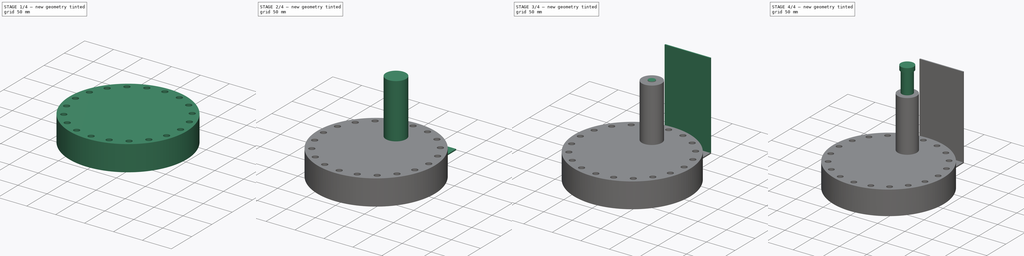
[diagram: build sequence overview — one tinted view per stage of 4, left to right]
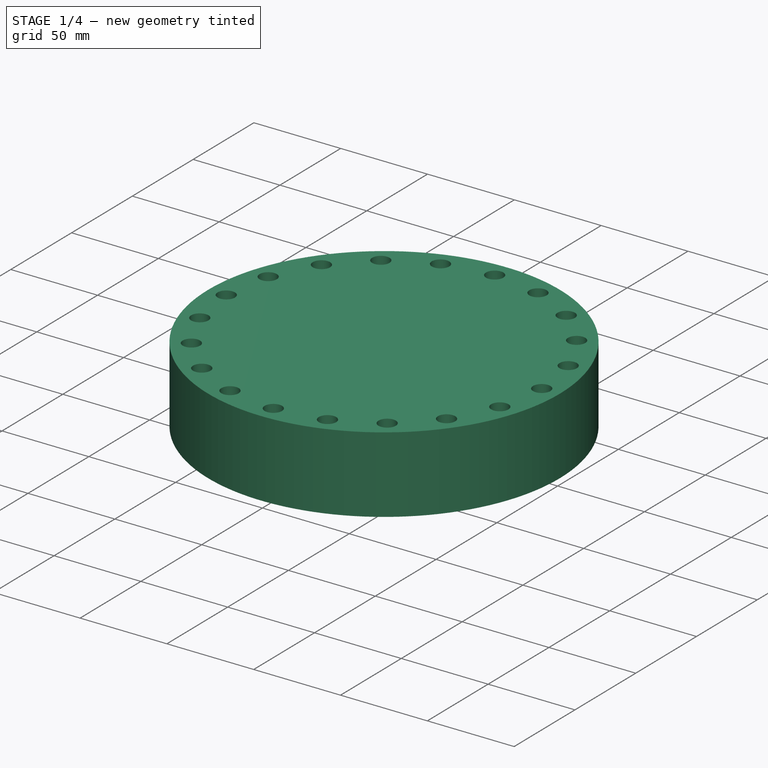
[diagram: stage 1 of 4 — iso view after this stage's code; geometry added in this stage tinted green]
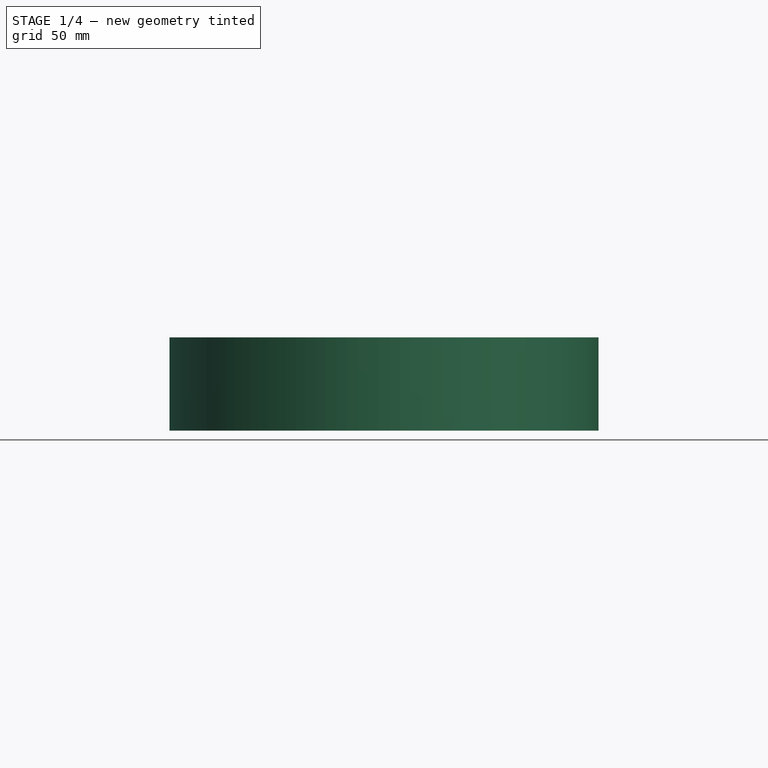
[diagram: stage 1 of 4 — front view after this stage's code; geometry added in this stage tinted green]
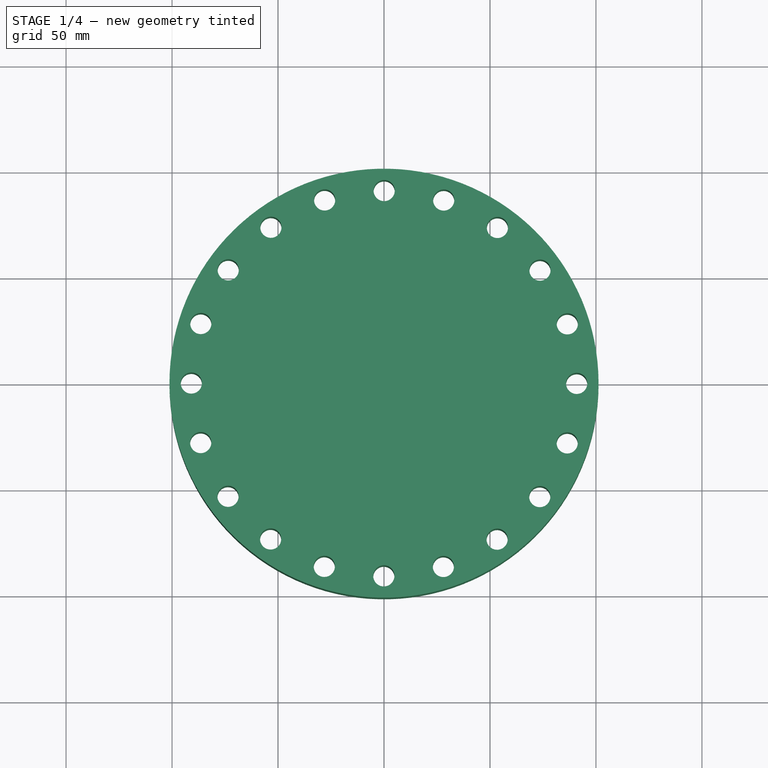
[diagram: stage 1 of 4 — top view after this stage's code; geometry added in this stage tinted green]
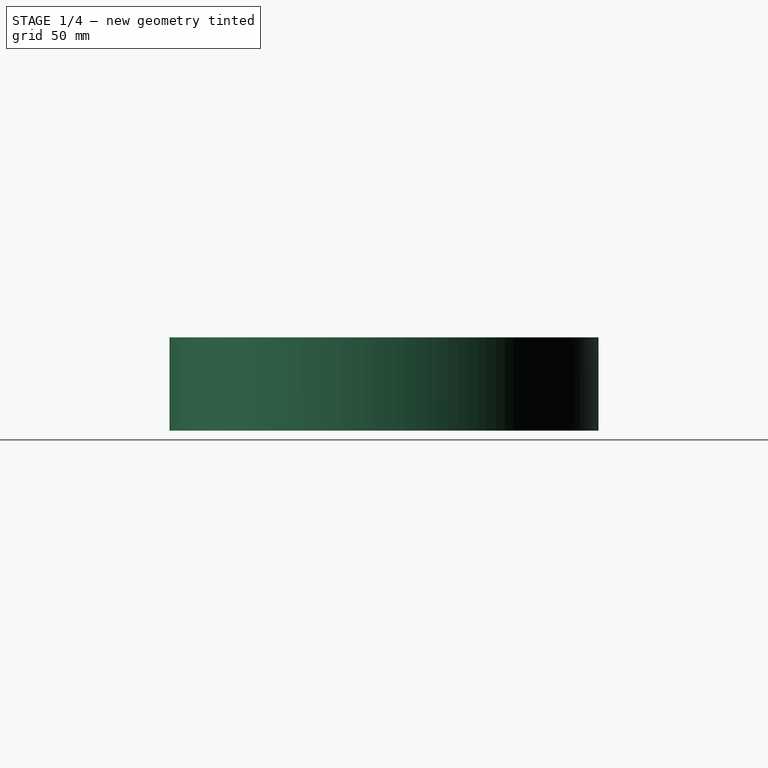
[diagram: stage 1 of 4 — right view after this stage's code; geometry added in this stage tinted green]
FCSTD DOCUMENT  (FreeCAD 0.18R4 (GitTag))
Label: PLD1_stepper
License: All rights reserved
LicenseURL: http://en.wikipedia.org/wiki/All_rights_reserved
objects: Sketcher::SketchObject×12, PartDesign::Pad×8, PartDesign::Pocket×2, PartDesign::PolarPattern×1, PartDesign::Body×1
note: 34 computed .brp shape members not serialized (recipe doc carries the construction recipe); baked Part::Feature solids carry a one-line shape summary decoded from their .brp

FEATURE [Sketcher::SketchObject] Sketch
  MapMode = 5
  Support = -> [XY_Plane]
  sketch-geometry (1):
    g0: Circle CenterX=0 CenterY=0 CenterZ=0 NormalX=0 NormalY=0 NormalZ=1 AngleXU=0 Radius=101.22
  constraints (1):
    c: Radius(g0) = 101.22
FEATURE [PartDesign::Pad] Pad
  Length = 44
  Length2 = 100
  Profile = -> Sketch
  Type = 0
FEATURE [Sketcher::SketchObject] Sketch001
  MapMode = 5
  Placement = pos=(0,0,44) rot=(0,0,1;0rad)
  Support = -> [Pad]
  sketch-geometry (2):
    g0: Circle CenterX=0.08499 CenterY=90.8998 CenterZ=0 NormalX=0 NormalY=0 NormalZ=1 AngleXU=0 Radius=5
    g1: GeomPoint X=0.247974 Y=100.9 Z=0
  constraints (2):
    c: Radius(g0) = 5
    c: DistanceY(g0,g1) = 10
FEATURE [PartDesign::Pocket] Pocket
  BaseFeature = -> Pad
  Length = 44
  Length2 = 100
  Profile = -> Sketch001
  Type = 0
FEATURE [PartDesign::PolarPattern] PolarPattern
  Angle = 360
  Axis = -> Sketch001 [N_Axis]
  BaseFeature = -> Pocket
  Occurrences = 20
  Originals = -> [Pocket]
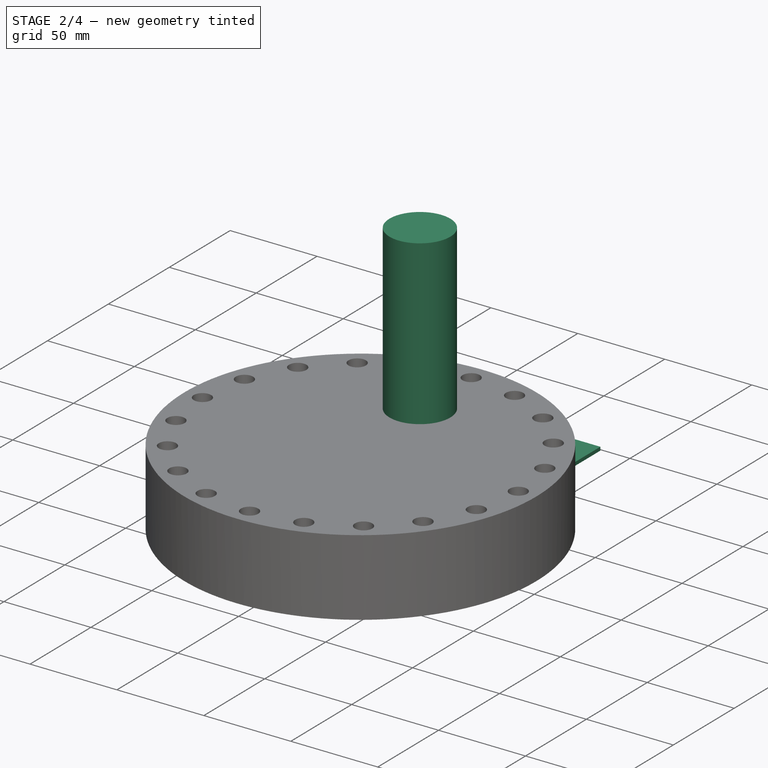
[diagram: stage 2 of 4 — iso view after this stage's code; geometry added in this stage tinted green]
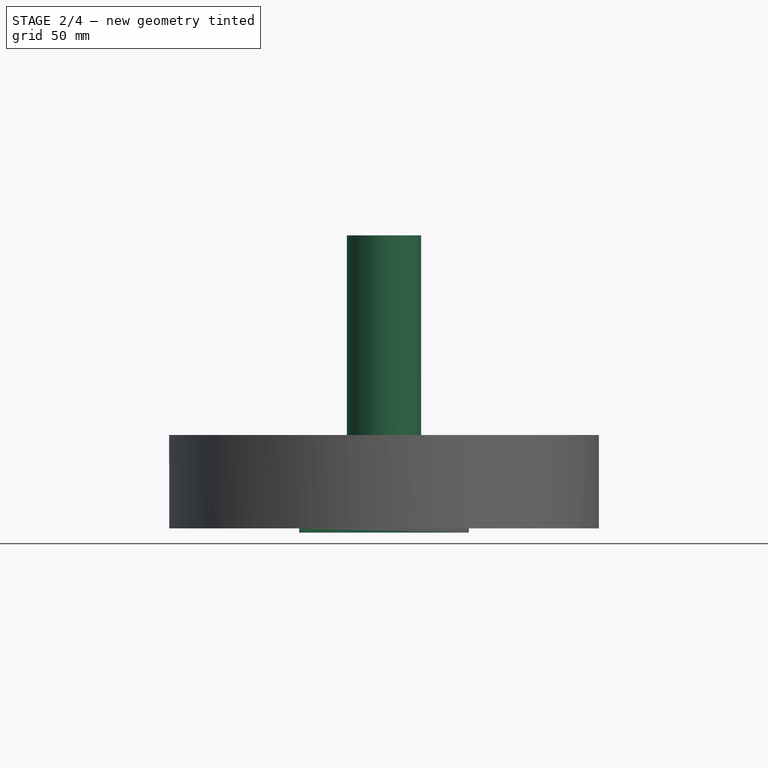
[diagram: stage 2 of 4 — front view after this stage's code; geometry added in this stage tinted green]
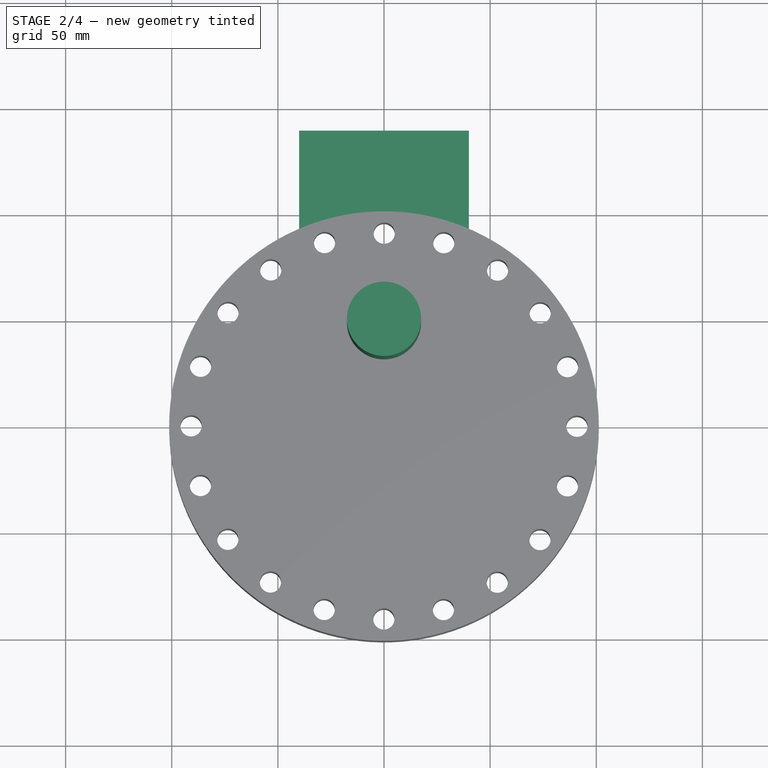
[diagram: stage 2 of 4 — top view after this stage's code; geometry added in this stage tinted green]
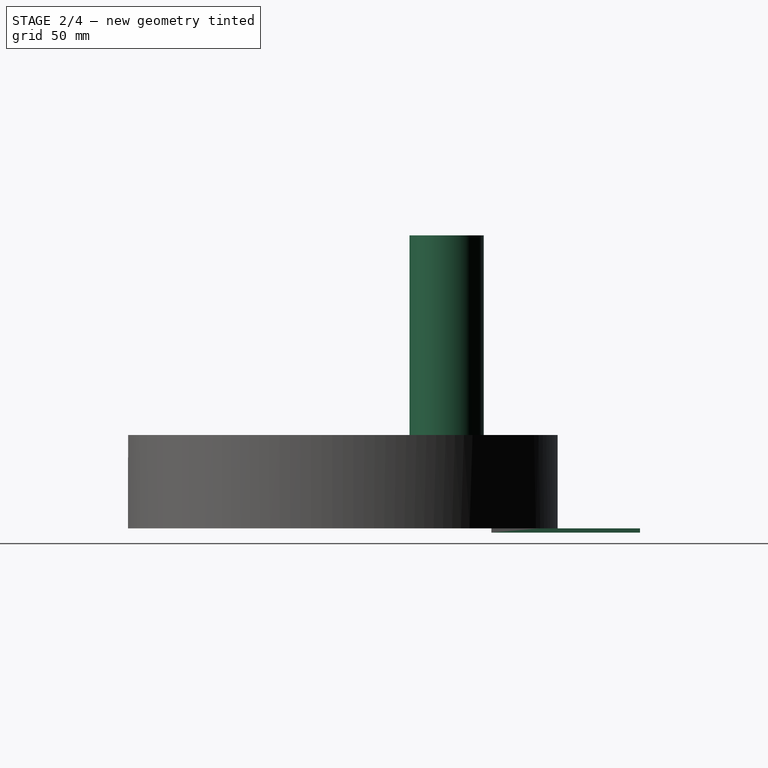
[diagram: stage 2 of 4 — right view after this stage's code; geometry added in this stage tinted green]
FEATURE [Sketcher::SketchObject] Sketch002
  MapMode = 5
  Support = -> [XY_Plane]
FEATURE [Sketcher::SketchObject] Sketch003
  ExternalGeometry = -> [PolarPattern]
  MapMode = 5
  Placement = pos=(0,0,44) rot=(0,0,1;0rad)
  Support = -> [PolarPattern]
  sketch-geometry (1):
    g0: Circle CenterX=0 CenterY=48.8998 CenterZ=0 NormalX=0 NormalY=0 NormalZ=1 AngleXU=0 Radius=17.5
  constraints (3):
    c: Radius(g0) = 17.5
    c: DistanceX(g-1,g0) = 0
    c: DistanceY(g0,g-4) = 42
FEATURE [PartDesign::Pad] Pad001
  BaseFeature = -> PolarPattern
  Length = 94
  Length2 = 100
  Profile = -> Sketch003
  Type = 0
FEATURE [Sketcher::SketchObject] Sketch004
  MapMode = 5
  Placement = pos=(0,0,0) rot=(1,0,0;3.14159rad)
  Support = -> [Pad001]
  sketch-geometry (4):
    g0: LineSegment StartX=-40 StartY=-70 StartZ=0 EndX=40 EndY=-70 EndZ=0
    g1: LineSegment StartX=40 StartY=-70 StartZ=0 EndX=40 EndY=-140 EndZ=0
    g2: LineSegment StartX=40 StartY=-140 StartZ=0 EndX=-40 EndY=-140 EndZ=0
    g3: LineSegment StartX=-40 StartY=-140 StartZ=0 EndX=-40 EndY=-70 EndZ=0
  constraints (12):
    c: Coincident(g0,g1)
    c: Coincident(g1,g2)
    c: Coincident(g2,g3)
    c: Coincident(g3,g0)
    c: Horizontal(g0)
    c: Horizontal(g2)
    c: Vertical(g1)
    c: Vertical(g3)
    c: DistanceX(g0,g0) = 80
    c: DistanceY(g0,g-1) = 70
    c: DistanceX(g-1,g0) = 40
    c: DistanceY(g1,g0) = 70
FEATURE [PartDesign::Pad] Pad002
  BaseFeature = -> Pad001
  Length = 2
  Length2 = 100
  Profile = -> Sketch004
  Type = 0
FEATURE [Sketcher::SketchObject] Sketch005
  ExternalGeometry = -> [Pad002]
  MapMode = 5
  Support = -> [Pad002]
  sketch-geometry (3):
    g0: Circle CenterX=-28.0088 CenterY=86.4771 CenterZ=0 NormalX=0 NormalY=0 NormalZ=1 AngleXU=0 Radius=5.11073
    g1: Circle CenterX=0.08499 CenterY=90.8998 CenterZ=0 NormalX=0 NormalY=0 NormalZ=1 AngleXU=0 Radius=5
    g2: Circle CenterX=28.1704 CenterY=86.4246 CenterZ=0 NormalX=0 NormalY=0 NormalZ=1 AngleXU=0 Radius=4.98765
  constraints (4):
    c: Radius(g-3) = 5
    c: Radius(g1) = 5
    c: DistanceX(g-3,g1) = 0
    c: DistanceY(g1,g-3) = 0
FEATURE [PartDesign::Pocket] Pocket001
  BaseFeature = -> Pad002
  Length = 5
  Length2 = 100
  Profile = -> Sketch005
  Type = 0
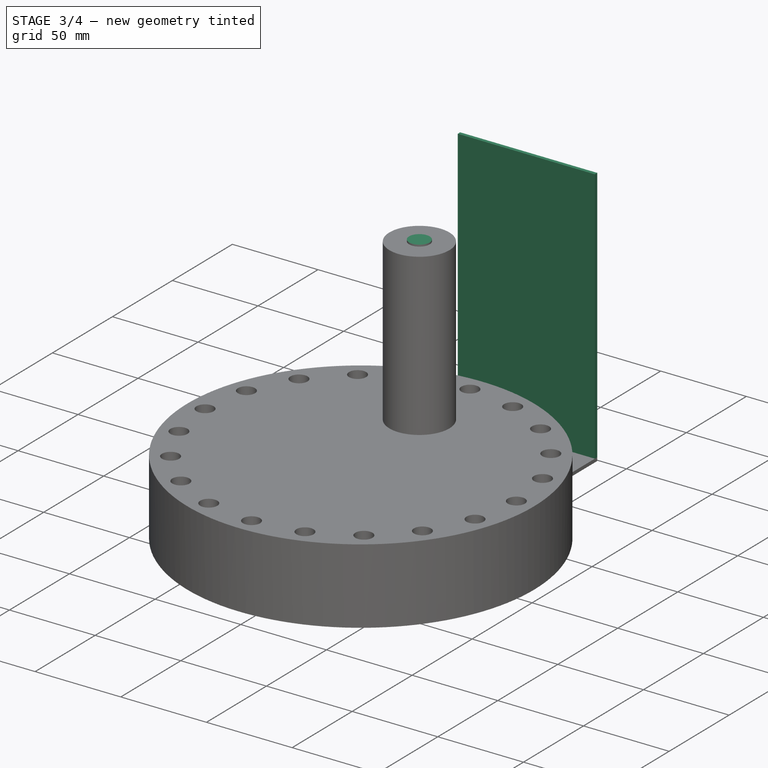
[diagram: stage 3 of 4 — iso view after this stage's code; geometry added in this stage tinted green]
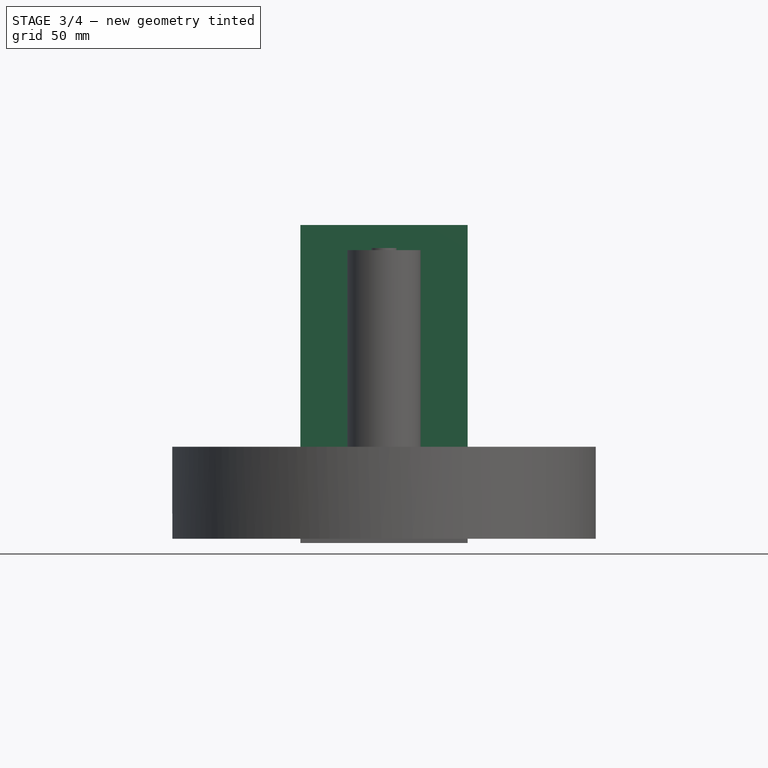
[diagram: stage 3 of 4 — front view after this stage's code; geometry added in this stage tinted green]
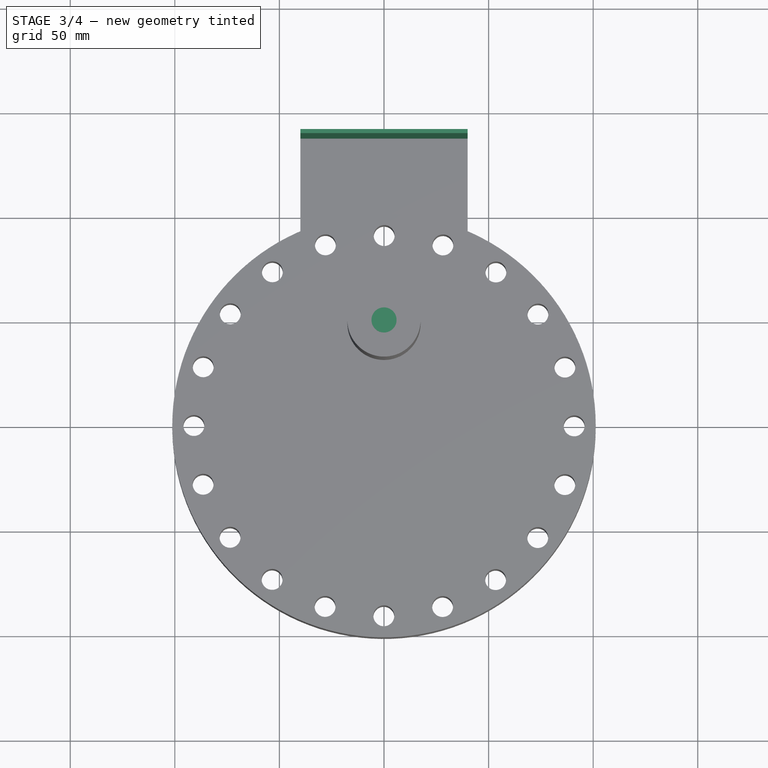
[diagram: stage 3 of 4 — top view after this stage's code; geometry added in this stage tinted green]
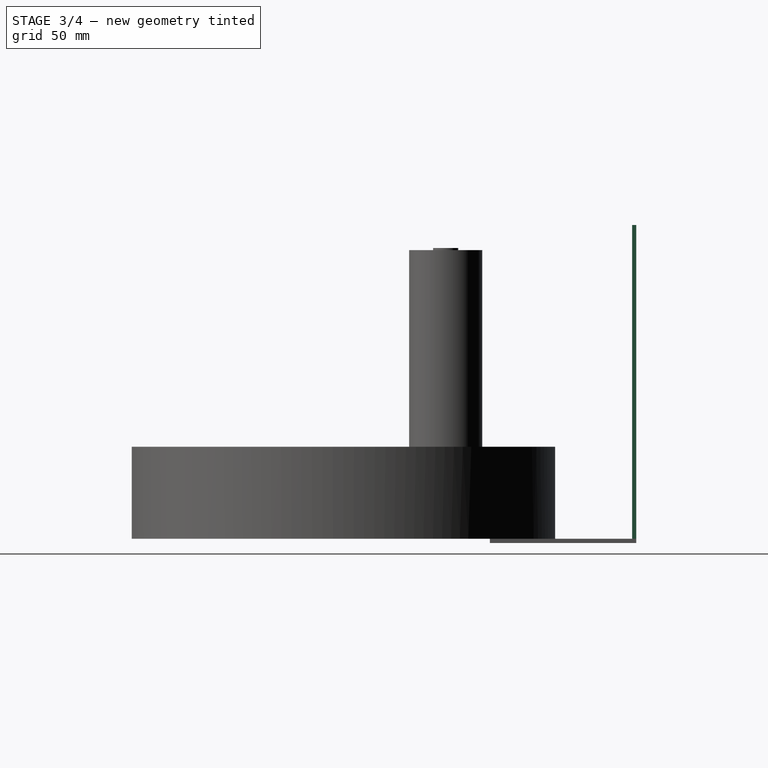
[diagram: stage 3 of 4 — right view after this stage's code; geometry added in this stage tinted green]
FEATURE [Sketcher::SketchObject] Sketch006
  ExternalGeometry = -> [Pocket001]
  MapMode = 5
  Support = -> [Pocket001]
  sketch-geometry (4):
    g0: LineSegment StartX=-40 StartY=140 StartZ=0 EndX=40 EndY=140 EndZ=0
    g1: LineSegment StartX=40 StartY=140 StartZ=0 EndX=40 EndY=138 EndZ=0
    g2: LineSegment StartX=40 StartY=138 StartZ=0 EndX=-40 EndY=138 EndZ=0
    g3: LineSegment StartX=-40 StartY=138 StartZ=0 EndX=-40 EndY=140 EndZ=0
  constraints (12):
    c: Coincident(g0,g1)
    c: Coincident(g1,g2)
    c: Coincident(g2,g3)
    c: Coincident(g3,g0)
    c: Horizontal(g0)
    c: Horizontal(g2)
    c: Vertical(g1)
    c: Vertical(g3)
    c: DistanceX(g-4,g0) = 0
    c: DistanceX(g0,g-5) = 0
    c: DistanceY(g0,g-5) = 0
    c: DistanceY(g1,g0) = 2
FEATURE [PartDesign::Pad] Pad003
  BaseFeature = -> Pocket001
  Length = 150
  Length2 = 100
  Profile = -> Sketch006
  Type = 0
FEATURE [Sketcher::SketchObject] Sketch007
  ExternalGeometry = -> [Pad003]
  MapMode = 5
  Placement = pos=(0,0,138) rot=(0,0,1;0rad)
  Support = -> [Pad003]
  sketch-geometry (1):
    g0: Circle CenterX=0 CenterY=48.8998 CenterZ=0 NormalX=0 NormalY=0 NormalZ=1 AngleXU=0 Radius=6
  constraints (1):
    c: Radius(g0) = 6
FEATURE [PartDesign::Pad] Pad004
  BaseFeature = -> Pad003
  Length = 1
  Length2 = 100
  Profile = -> Sketch007
  Type = 0
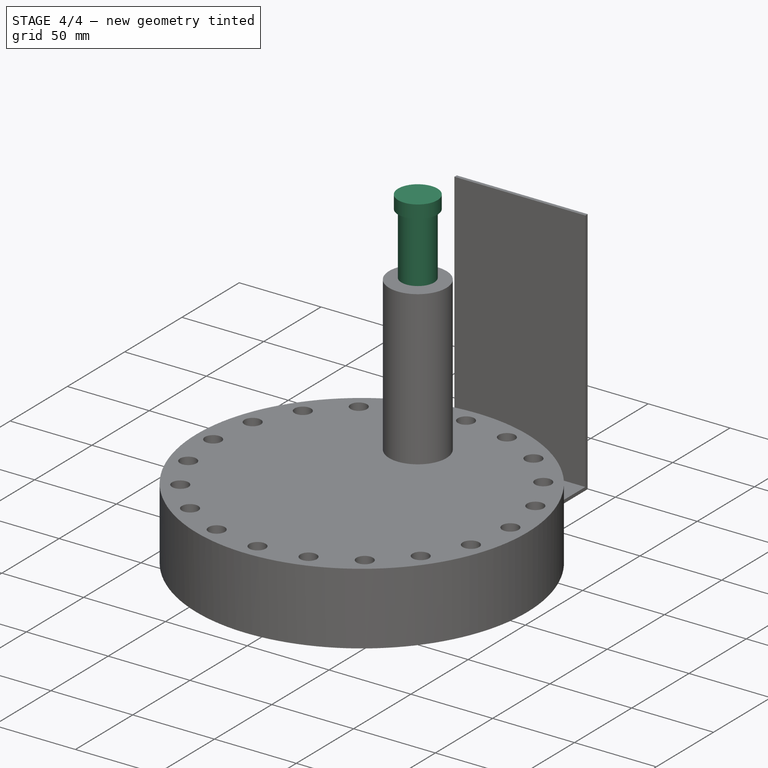
[diagram: stage 4 of 4 — iso view after this stage's code; geometry added in this stage tinted green]
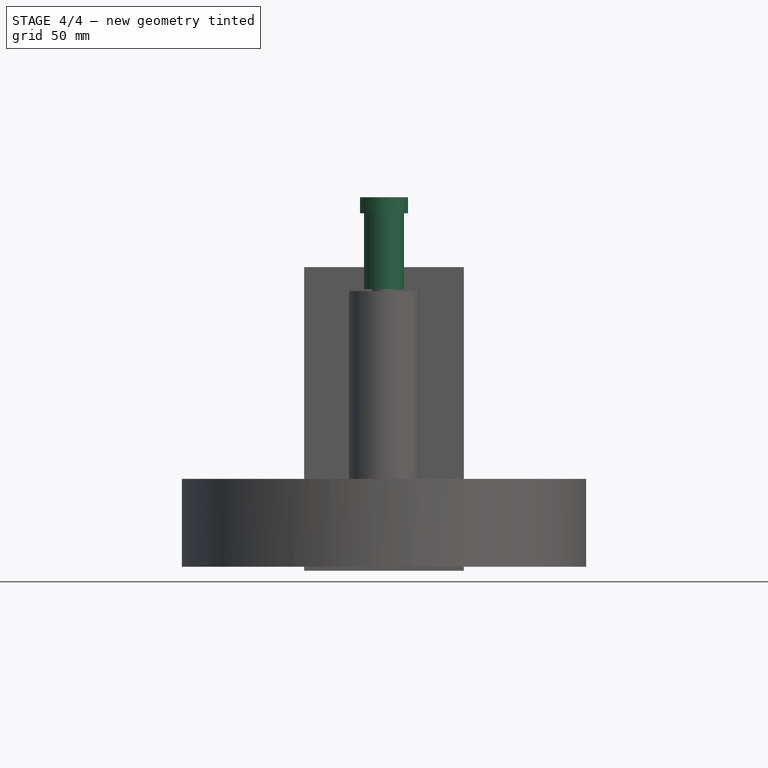
[diagram: stage 4 of 4 — front view after this stage's code; geometry added in this stage tinted green]
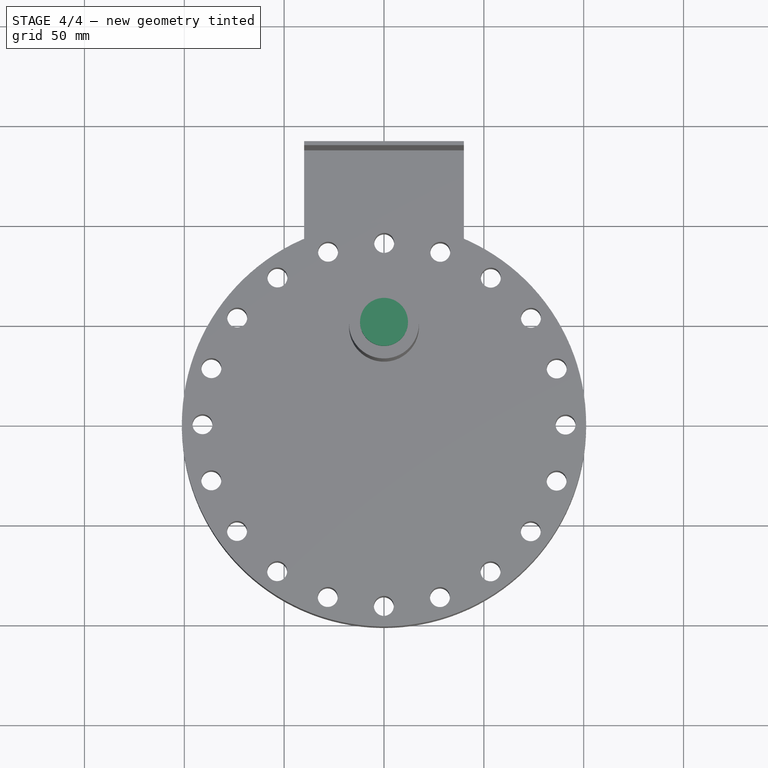
[diagram: stage 4 of 4 — top view after this stage's code; geometry added in this stage tinted green]
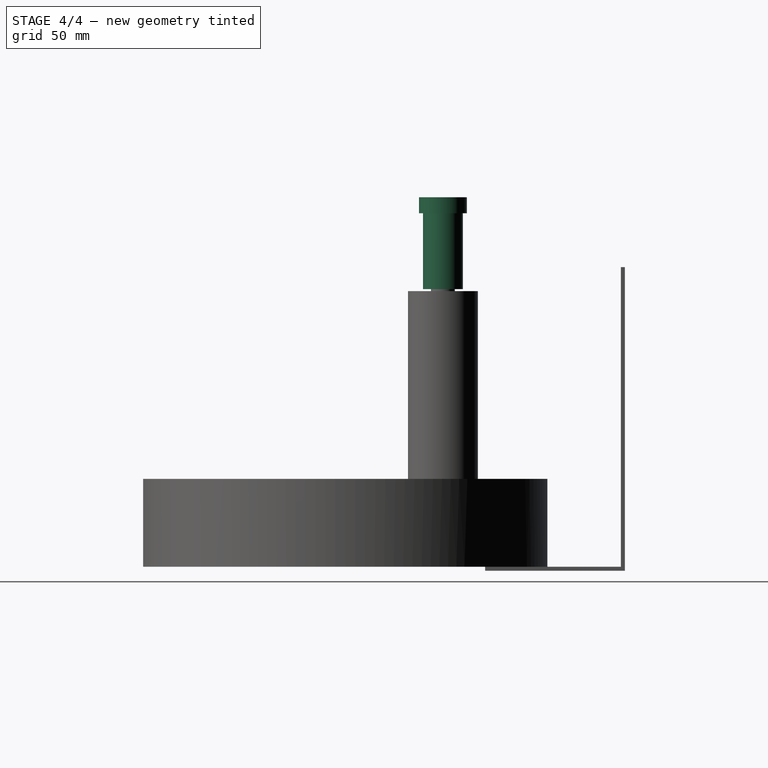
[diagram: stage 4 of 4 — right view after this stage's code; geometry added in this stage tinted green]
FEATURE [Sketcher::SketchObject] Sketch008
  ExternalGeometry = -> [Pad004]
  MapMode = 5
  Placement = pos=(0,0,139) rot=(0,0,1;0rad)
  Support = -> [Pad004]
  sketch-geometry (1):
    g0: Circle CenterX=0 CenterY=48.8998 CenterZ=0 NormalX=0 NormalY=0 NormalZ=1 AngleXU=0 Radius=10
  constraints (1):
    c: Radius(g0) = 10
FEATURE [PartDesign::Pad] Pad005
  BaseFeature = -> Pad004
  Length = 30
  Length2 = 100
  Profile = -> Sketch008
  Type = 0
FEATURE [Sketcher::SketchObject] Sketch009
  MapMode = 5
  Placement = pos=(0,0,169) rot=(0,0,1;0rad)
  Support = -> [Pad005]
FEATURE [PartDesign::Pad] Pad006
  BaseFeature = -> Pad005
  Length = 8
  Length2 = 100
  Profile = -> Pad005 [Face3]
  Type = 0
FEATURE [Sketcher::SketchObject] Sketch010
  ExternalGeometry = -> [Pad006]
  MapMode = 5
  Placement = pos=(0,0,177) rot=(0,0,1;0rad)
  Support = -> [Pad006]
  sketch-geometry (1):
    g0: Circle CenterX=0 CenterY=48.8998 CenterZ=0 NormalX=0 NormalY=0 NormalZ=1 AngleXU=0 Radius=12
  constraints (1):
    c: Radius(g0) = 12
FEATURE [PartDesign::Pad] Pad007
  BaseFeature = -> Pad006
  Length = 8
  Length2 = 100
  Profile = -> Sketch010
  Type = 0
FEATURE [Sketcher::SketchObject] Sketch011
  ExternalGeometry = -> [Pad007]
  MapMode = 5
  Placement = pos=(0,0,185) rot=(0,0,1;0rad)
  Support = -> [Pad007]
  sketch-geometry (2):
    g0: GeomPoint X=0 Y=85.8998 Z=0
    g1: Circle CenterX=0 CenterY=85.8998 CenterZ=0 NormalX=0 NormalY=0 NormalZ=1 AngleXU=0 Radius=25
  constraints (3):
    c: DistanceX(g-3,g0) = 0
    c: DistanceY(g-3,g0) = 37
    c: Radius(g1) = 25
FEATURE [PartDesign::Body] Body
  Group = -> [Sketch,Pad,Sketch001,Pocket,PolarPattern,Sketch002,Sketch003,Pad001,Sketch004,Pad002,Sketch005,Pocket001,Sketch006,Pad003,Sketch007,Pad004,Sketch008,Pad005,Sketch009,Pad006,Sketch010,Pad007,Sketch011]
  Origin = -> Origin
  Tip = -> Pad007
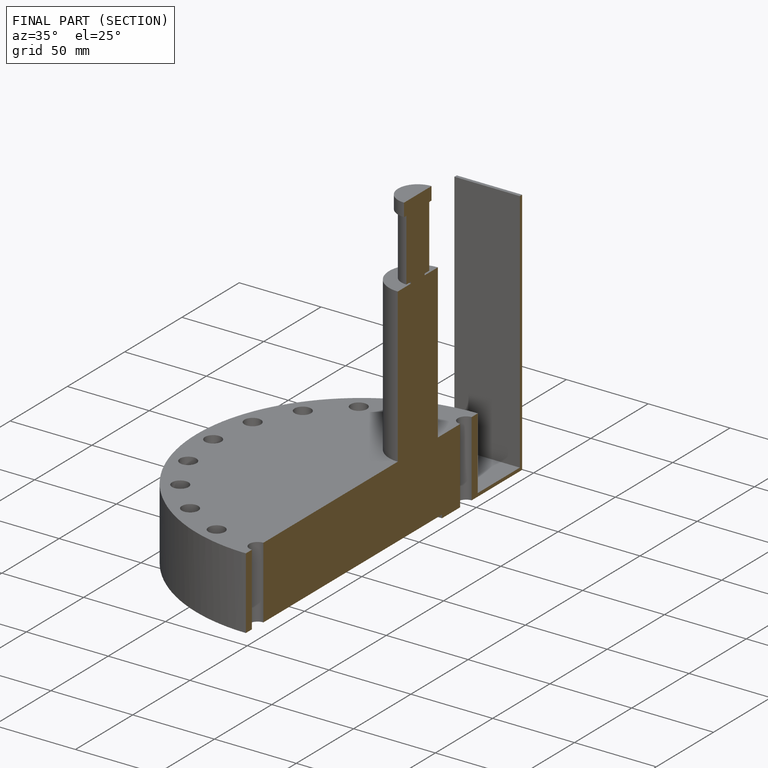
[diagram: finished part — half-section view (interior)]
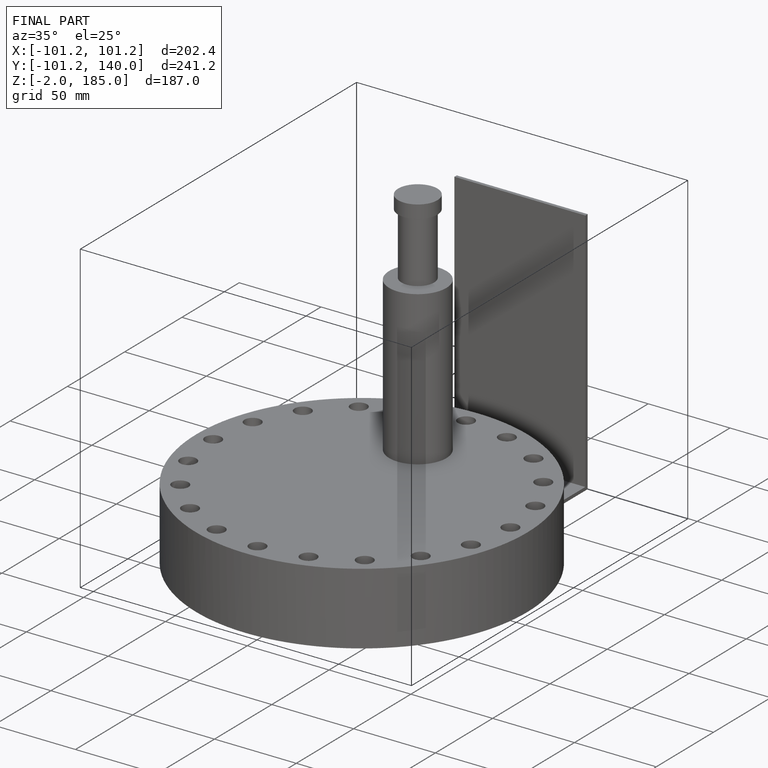
[diagram: finished part — iso view with bounding-box wireframe]
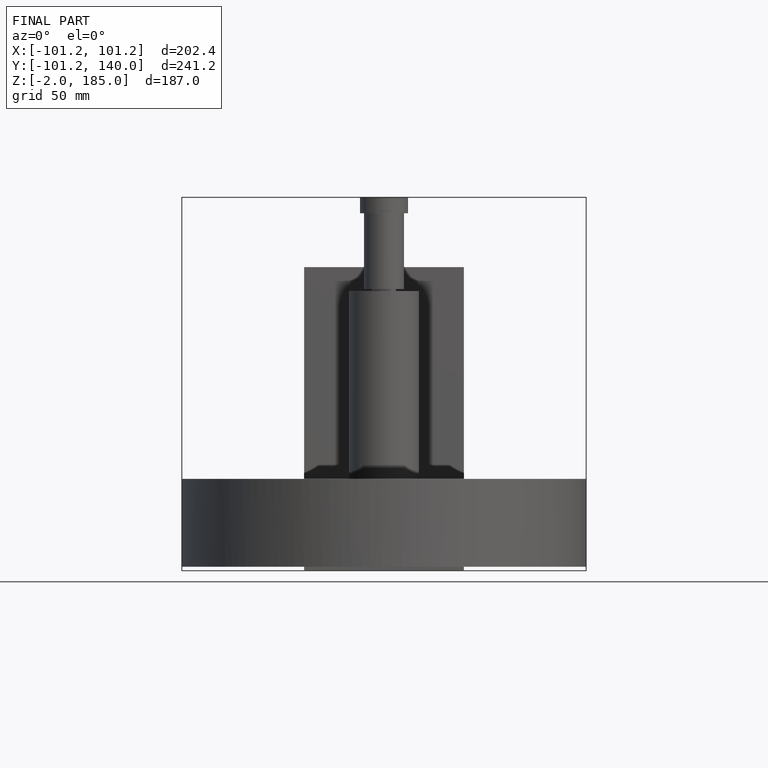
[diagram: finished part — front view with bounding-box wireframe]
